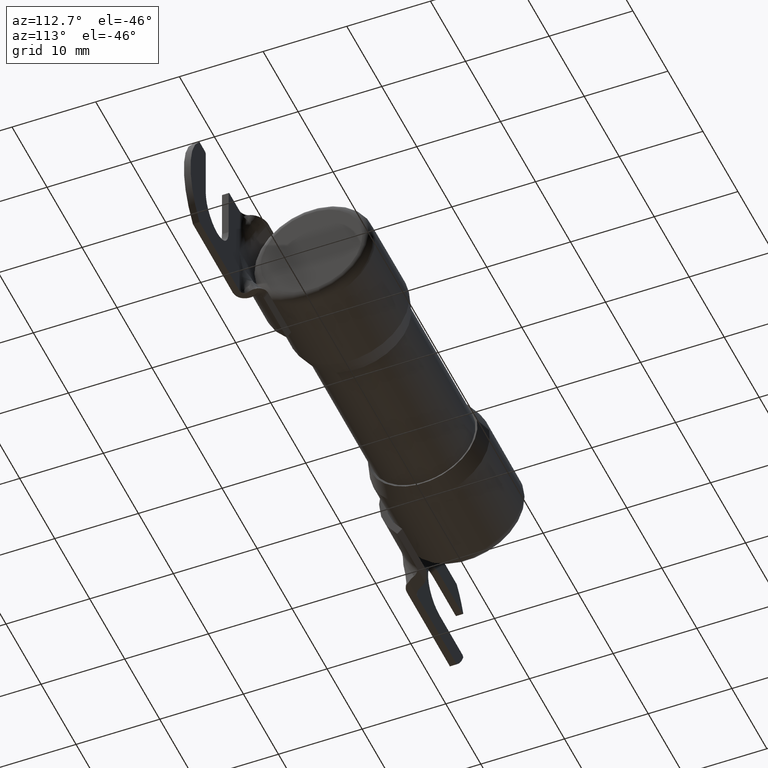
[diagram: clean part render]
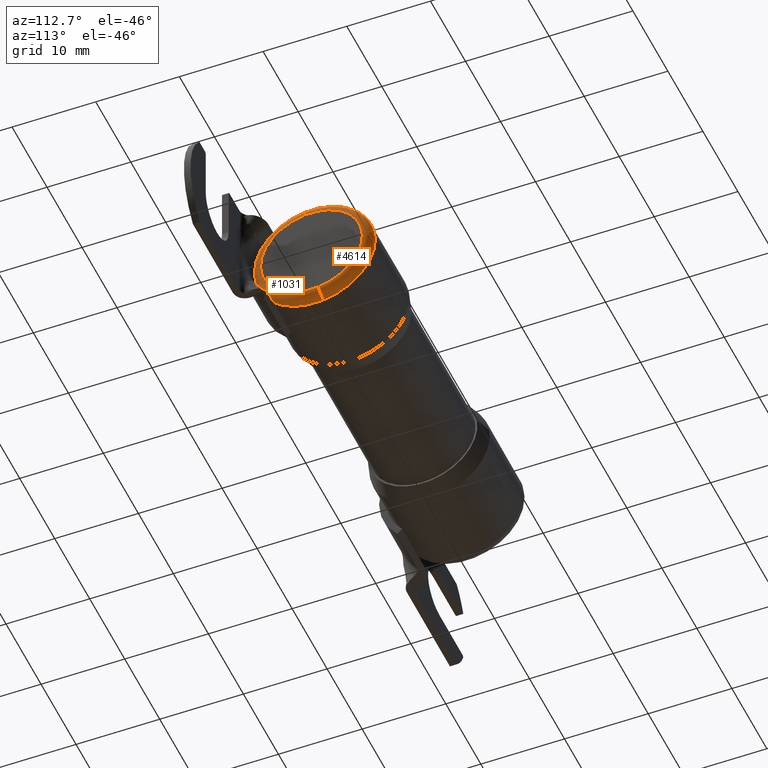
[diagram: same view with one multi-face feature highlighted, each face labeled with its STEP entity id]
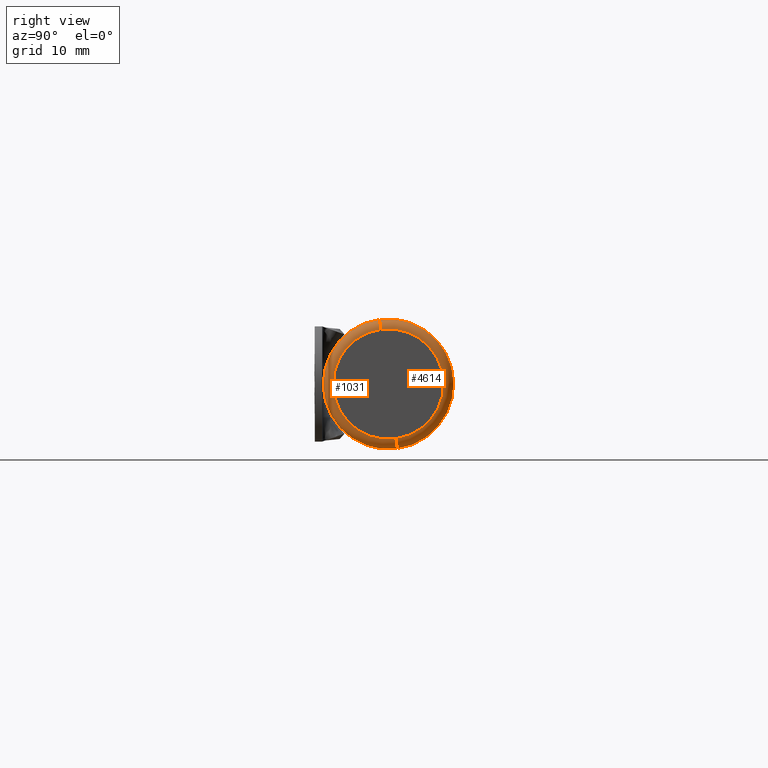
[diagram: same view with one multi-face feature highlighted, each face labeled with its STEP entity id]
A machine part, auxiliary view. The highlighted faces form ONE feature: a constant-radius fillet chain: 2 tangent blend faces with common blend radius 1.1049 mm. The faces share edges in the B-rep.
A second angle (right view) of the same feature is appended — it is thin or edge-on in the first view.
Their STEP definitions:
[1] entity #1031 (Torus):
#14 = CARTESIAN_POINT ( 'NONE',  ( 0.8340000000000000700, -0.03291220403616981800, 0.2372278162979235500 ) ) ;
#184 = CARTESIAN_POINT ( 'NONE',  ( 0.8774999999999999500, -0.03291220403616981800, 0.2372278162979235000 ) ) ;
#268 = CARTESIAN_POINT ( 'NONE',  ( 0.8340000000000000700, 0.0000000000000000000, 3.791200677927629700E-033 ) ) ;
#551 = DIRECTION ( 'NONE',  ( -1.000000000000000000, -0.0000000000000000000, -0.0000000000000000000 ) ) ;
#690 = EDGE_CURVE ( 'NONE', #2798, #3409, #4474, .T. ) ;
#1031 = ADVANCED_FACE ( 'NONE', ( #2752 ), #2191, .T. ) ;
#1111 = DIRECTION ( 'NONE',  ( 1.000000000000000000, 0.0000000000000000000, 0.0000000000000000000 ) ) ;
#1205 = DIRECTION ( 'NONE',  ( 0.0000000000000000000, 0.1374204761426717500, -0.9905128029140871600 ) ) ;
#1457 = EDGE_CURVE ( 'NONE', #3243, #2798, #3399, .T. ) ;
#1556 = DIRECTION ( 'NONE',  ( 0.0000000000000000000, 0.1374204761426717800, -0.9905128029140872800 ) ) ;
#1723 = CIRCLE ( 'NONE', #3082, 0.04350000000000001100 ) ;
#1897 = CARTESIAN_POINT ( 'NONE',  ( 0.8774999999999999500, -2.314008760874636600E-019, 1.667913958704417300E-018 ) ) ;
#2029 = VERTEX_POINT ( 'NONE', #4653 ) ;
#2060 = EDGE_CURVE ( 'NONE', #2029, #3243, #4634, .T. ) ;
#2149 = AXIS2_PLACEMENT_3D ( 'NONE', #4292, #3397, #1205 ) ;
#2191 = TOROIDAL_SURFACE ( 'NONE', #4445, 0.2394999999999999400, 0.04350000000000000400 ) ;
#2252 = CARTESIAN_POINT ( 'NONE',  ( 0.8339999999999998500, 0.0000000000000000000, 3.791200677927629700E-033 ) ) ;
#2653 = ORIENTED_EDGE ( 'NONE', *, *, #690, .T. ) ;
#2731 = DIRECTION ( 'NONE',  ( -0.0000000000000000000, 0.9905128029140873900, 0.1374204761426716900 ) ) ;
#2752 = FACE_OUTER_BOUND ( 'NONE', #4177, .T. ) ;
#2798 = VERTEX_POINT ( 'NONE', #5423 ) ;
#3082 = AXIS2_PLACEMENT_3D ( 'NONE', #14, #2731, #5353 ) ;
#3203 = EDGE_CURVE ( 'NONE', #2029, #3409, #1723, .T. ) ;
#3243 = VERTEX_POINT ( 'NONE', #4328 ) ;
#3397 = DIRECTION ( 'NONE',  ( 0.0000000000000000000, -0.9905128029140873900, -0.1374204761426718000 ) ) ;
#3399 = CIRCLE ( 'NONE', #2149, 0.04350000000000001100 ) ;
#3409 = VERTEX_POINT ( 'NONE', #184 ) ;
#3536 = ORIENTED_EDGE ( 'NONE', *, *, #3203, .F. ) ;
#4106 = ORIENTED_EDGE ( 'NONE', *, *, #1457, .T. ) ;
#4137 = DIRECTION ( 'NONE',  ( 0.0000000000000000000, 0.1374204761426717800, -0.9905128029140872800 ) ) ;
#4177 = EDGE_LOOP ( 'NONE', ( #3536, #5441, #4106, #2653 ) ) ;
#4292 = CARTESIAN_POINT ( 'NONE',  ( 0.8340000000000000700, 0.03291220403616983800, -0.2372278162979235500 ) ) ;
#4328 = CARTESIAN_POINT ( 'NONE',  ( 0.8339999999999998500, 0.03888999474837605300, -0.2803151232246863200 ) ) ;
#4445 = AXIS2_PLACEMENT_3D ( 'NONE', #268, #1111, #1556 ) ;
#4474 = CIRCLE ( 'NONE', #5350, 0.2394999999999996000 ) ;
#4634 = CIRCLE ( 'NONE', #4869, 0.2829999999999995900 ) ;
#4653 = CARTESIAN_POINT ( 'NONE',  ( 0.8339999999999998500, -0.03888999474837603900, 0.2803151232246863200 ) ) ;
#4869 = AXIS2_PLACEMENT_3D ( 'NONE', #2252, #5222, #5522 ) ;
#5222 = DIRECTION ( 'NONE',  ( 1.000000000000000000, 0.0000000000000000000, 0.0000000000000000000 ) ) ;
#5350 = AXIS2_PLACEMENT_3D ( 'NONE', #1897, #551, #4137 ) ;
#5353 = DIRECTION ( 'NONE',  ( 0.0000000000000000000, -0.1374204761426717500, 0.9905128029140871600 ) ) ;
#5423 = CARTESIAN_POINT ( 'NONE',  ( 0.8774999999999999500, 0.03291220403616983800, -0.2372278162979235000 ) ) ;
#5441 = ORIENTED_EDGE ( 'NONE', *, *, #2060, .T. ) ;
#5522 = DIRECTION ( 'NONE',  ( 0.0000000000000000000, 0.1374204761426717800, -0.9905128029140871600 ) ) ;
[2] entity #4614 (Torus):
#14 = CARTESIAN_POINT ( 'NONE',  ( 0.8340000000000000700, -0.03291220403616981800, 0.2372278162979235500 ) ) ;
#184 = CARTESIAN_POINT ( 'NONE',  ( 0.8774999999999999500, -0.03291220403616981800, 0.2372278162979235000 ) ) ;
#438 = DIRECTION ( 'NONE',  ( 0.0000000000000000000, 0.1374204761426717800, -0.9905128029140872800 ) ) ;
#897 = ORIENTED_EDGE ( 'NONE', *, *, #1457, .F. ) ;
#979 = CIRCLE ( 'NONE', #1968, 0.2829999999999995900 ) ;
#1205 = DIRECTION ( 'NONE',  ( 0.0000000000000000000, 0.1374204761426717500, -0.9905128029140871600 ) ) ;
#1275 = DIRECTION ( 'NONE',  ( 0.0000000000000000000, 0.1374204761426717800, -0.9905128029140872800 ) ) ;
#1363 = AXIS2_PLACEMENT_3D ( 'NONE', #5753, #3142, #438 ) ;
#1457 = EDGE_CURVE ( 'NONE', #3243, #2798, #3399, .T. ) ;
#1723 = CIRCLE ( 'NONE', #3082, 0.04350000000000001100 ) ;
#1965 = ORIENTED_EDGE ( 'NONE', *, *, #3203, .T. ) ;
#1968 = AXIS2_PLACEMENT_3D ( 'NONE', #2266, #5354, #2732 ) ;
#2029 = VERTEX_POINT ( 'NONE', #4653 ) ;
#2149 = AXIS2_PLACEMENT_3D ( 'NONE', #4292, #3397, #1205 ) ;
#2266 = CARTESIAN_POINT ( 'NONE',  ( 0.8339999999999998500, 0.0000000000000000000, 3.791200677927629700E-033 ) ) ;
#2298 = CIRCLE ( 'NONE', #1363, 0.2394999999999996000 ) ;
#2731 = DIRECTION ( 'NONE',  ( -0.0000000000000000000, 0.9905128029140873900, 0.1374204761426716900 ) ) ;
#2732 = DIRECTION ( 'NONE',  ( 0.0000000000000000000, 0.1374204761426717800, -0.9905128029140871600 ) ) ;
#2798 = VERTEX_POINT ( 'NONE', #5423 ) ;
#3037 = CARTESIAN_POINT ( 'NONE',  ( 0.8340000000000000700, 0.0000000000000000000, 3.791200677927629700E-033 ) ) ;
#3082 = AXIS2_PLACEMENT_3D ( 'NONE', #14, #2731, #5353 ) ;
#3142 = DIRECTION ( 'NONE',  ( -1.000000000000000000, -0.0000000000000000000, -0.0000000000000000000 ) ) ;
#3203 = EDGE_CURVE ( 'NONE', #2029, #3409, #1723, .T. ) ;
#3243 = VERTEX_POINT ( 'NONE', #4328 ) ;
#3336 = ORIENTED_EDGE ( 'NONE', *, *, #4743, .T. ) ;
#3397 = DIRECTION ( 'NONE',  ( 0.0000000000000000000, -0.9905128029140873900, -0.1374204761426718000 ) ) ;
#3399 = CIRCLE ( 'NONE', #2149, 0.04350000000000001100 ) ;
#3409 = VERTEX_POINT ( 'NONE', #184 ) ;
#3430 = FACE_OUTER_BOUND ( 'NONE', #5103, .T. ) ;
#3952 = DIRECTION ( 'NONE',  ( 1.000000000000000000, 0.0000000000000000000, 0.0000000000000000000 ) ) ;
#4058 = TOROIDAL_SURFACE ( 'NONE', #5042, 0.2394999999999999400, 0.04350000000000000400 ) ;
#4292 = CARTESIAN_POINT ( 'NONE',  ( 0.8340000000000000700, 0.03291220403616983800, -0.2372278162979235500 ) ) ;
#4328 = CARTESIAN_POINT ( 'NONE',  ( 0.8339999999999998500, 0.03888999474837605300, -0.2803151232246863200 ) ) ;
#4614 = ADVANCED_FACE ( 'NONE', ( #3430 ), #4058, .T. ) ;
#4653 = CARTESIAN_POINT ( 'NONE',  ( 0.8339999999999998500, -0.03888999474837603900, 0.2803151232246863200 ) ) ;
#4743 = EDGE_CURVE ( 'NONE', #3409, #2798, #2298, .T. ) ;
#4851 = EDGE_CURVE ( 'NONE', #3243, #2029, #979, .T. ) ;
#5042 = AXIS2_PLACEMENT_3D ( 'NONE', #3037, #3952, #1275 ) ;
#5103 = EDGE_LOOP ( 'NONE', ( #5760, #1965, #3336, #897 ) ) ;
#5353 = DIRECTION ( 'NONE',  ( 0.0000000000000000000, -0.1374204761426717500, 0.9905128029140871600 ) ) ;
#5354 = DIRECTION ( 'NONE',  ( 1.000000000000000000, 0.0000000000000000000, 0.0000000000000000000 ) ) ;
#5423 = CARTESIAN_POINT ( 'NONE',  ( 0.8774999999999999500, 0.03291220403616983800, -0.2372278162979235000 ) ) ;
#5753 = CARTESIAN_POINT ( 'NONE',  ( 0.8774999999999999500, -2.314008760874636600E-019, 1.667913958704417300E-018 ) ) ;
#5760 = ORIENTED_EDGE ( 'NONE', *, *, #4851, .T. ) ;